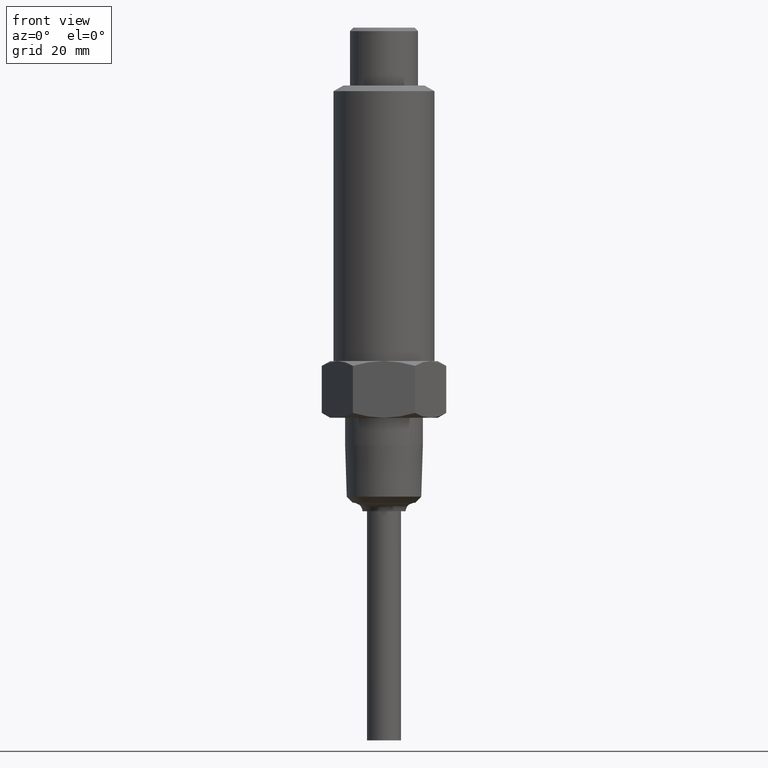
[diagram: clean part render]
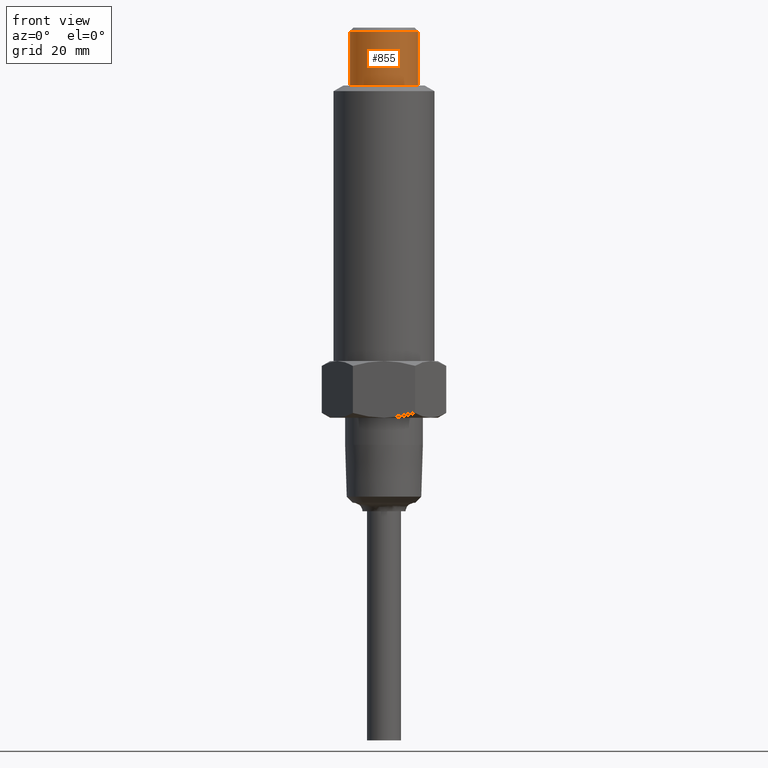
[diagram: same view with one face highlighted and labeled with its STEP entity id]
A machine part, front view. The second image highlights one B-rep face of the part: STEP entity #855.
In plain terms, the highlighted cylindrical surface (edge-blend (fillet) strip) has radius 6 mm, axis along (0, 0, -1).
Its self-contained STEP definition (entity closure, byte-faithful):
#12 = EDGE_CURVE ( 'NONE', #1319, #664, #1493, .T. ) ;
#40 = CARTESIAN_POINT ( 'NONE',  ( 0.000000000000000000, 0.000000000000000000, -0.2128641732283464705 ) ) ;
#65 = LINE ( 'NONE', #665, #560 ) ;
#112 = CARTESIAN_POINT ( 'NONE',  ( -0.2362204724406674061, -7.232166136665651665E-18, -0.02415354330638781397 ) ) ;
#163 = CYLINDRICAL_SURFACE ( 'NONE', #348, 0.2362204724409449064 ) ;
#172 = EDGE_CURVE ( 'NONE', #1336, #1319, #1057, .T. ) ;
#237 = DIRECTION ( 'NONE',  ( -1.000000000000000000, 0.000000000000000000, 0.000000000000000000 ) ) ;
#271 = FACE_OUTER_BOUND ( 'NONE', #1122, .T. ) ;
#298 = DIRECTION ( 'NONE',  ( 0.000000000000000000, 0.000000000000000000, -1.000000000000000000 ) ) ;
#348 = AXIS2_PLACEMENT_3D ( 'NONE', #40, #733, #971 ) ;
#389 = AXIS2_PLACEMENT_3D ( 'NONE', #1183, #586, #1064 ) ;
#543 = VERTEX_POINT ( 'NONE', #1018 ) ;
#560 = VECTOR ( 'NONE', #298, 39.37007874015748143 ) ;
#586 = DIRECTION ( 'NONE',  ( 0.000000000000000000, 0.000000000000000000, -1.000000000000000000 ) ) ;
#637 = CIRCLE ( 'NONE', #1257, 0.2362204724409449064 ) ;
#664 = VERTEX_POINT ( 'NONE', #112 ) ;
#665 = CARTESIAN_POINT ( 'NONE',  ( 0.2362204724409449064, 2.892866454678787531E-17, -0.2128641732283464705 ) ) ;
#726 = CARTESIAN_POINT ( 'NONE',  ( -0.2362204724409449064, 0.000000000000000000, -0.4015748031496062520 ) ) ;
#733 = DIRECTION ( 'NONE',  ( 0.000000000000000000, 0.000000000000000000, -1.000000000000000000 ) ) ;
#736 = VECTOR ( 'NONE', #895, 39.37007874015748143 ) ;
#842 = CARTESIAN_POINT ( 'NONE',  ( 0.2362204724409449064, 2.892866454678787531E-17, -0.4015748031496062520 ) ) ;
#855 = ADVANCED_FACE ( 'NONE', ( #271 ), #163, .T. ) ;
#895 = DIRECTION ( 'NONE',  ( -0.000000000000000000, -0.000000000000000000, 1.000000000000000000 ) ) ;
#971 = DIRECTION ( 'NONE',  ( -1.000000000000000000, 0.000000000000000000, 0.000000000000000000 ) ) ;
#977 = EDGE_CURVE ( 'NONE', #543, #664, #637, .T. ) ;
#998 = ORIENTED_EDGE ( 'NONE', *, *, #12, .F. ) ;
#1018 = CARTESIAN_POINT ( 'NONE',  ( 0.2362204724406674061, 1.808041534173378774E-17, -0.02415354330638781397 ) ) ;
#1057 = CIRCLE ( 'NONE', #389, 0.2362204724409449064 ) ;
#1064 = DIRECTION ( 'NONE',  ( -1.000000000000000000, 0.000000000000000000, 0.000000000000000000 ) ) ;
#1073 = ORIENTED_EDGE ( 'NONE', *, *, #1094, .F. ) ;
#1094 = EDGE_CURVE ( 'NONE', #543, #1336, #65, .T. ) ;
#1122 = EDGE_LOOP ( 'NONE', ( #998, #1224, #1073, #1465 ) ) ;
#1136 = CARTESIAN_POINT ( 'NONE',  ( -0.2362204724409449064, 0.000000000000000000, -0.2128641732283464705 ) ) ;
#1183 = CARTESIAN_POINT ( 'NONE',  ( 0.000000000000000000, 0.000000000000000000, -0.4015748031496062520 ) ) ;
#1224 = ORIENTED_EDGE ( 'NONE', *, *, #172, .F. ) ;
#1257 = AXIS2_PLACEMENT_3D ( 'NONE', #1522, #1530, #237 ) ;
#1319 = VERTEX_POINT ( 'NONE', #726 ) ;
#1336 = VERTEX_POINT ( 'NONE', #842 ) ;
#1465 = ORIENTED_EDGE ( 'NONE', *, *, #977, .T. ) ;
#1493 = LINE ( 'NONE', #1136, #736 ) ;
#1522 = CARTESIAN_POINT ( 'NONE',  ( 0.000000000000000000, 0.000000000000000000, -0.02415354330708676528 ) ) ;
#1530 = DIRECTION ( 'NONE',  ( 0.000000000000000000, 0.000000000000000000, -1.000000000000000000 ) ) ;